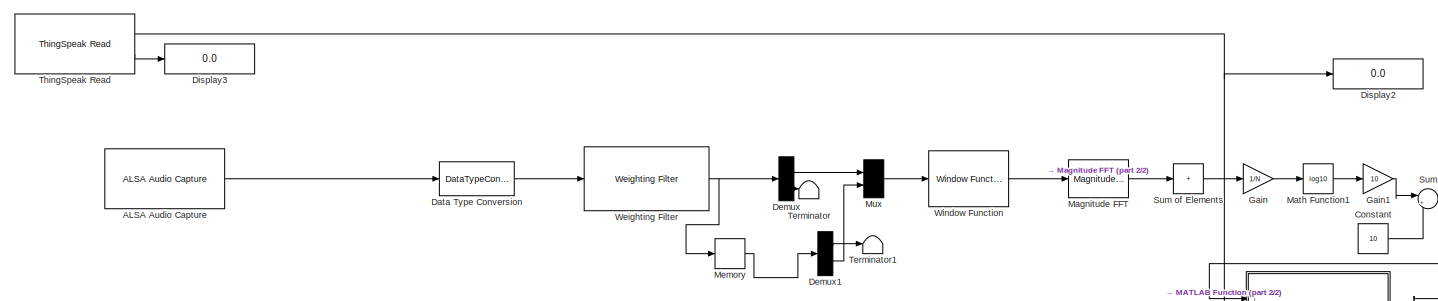
[diagram: root canvas - part 1/2, full width, middle band]
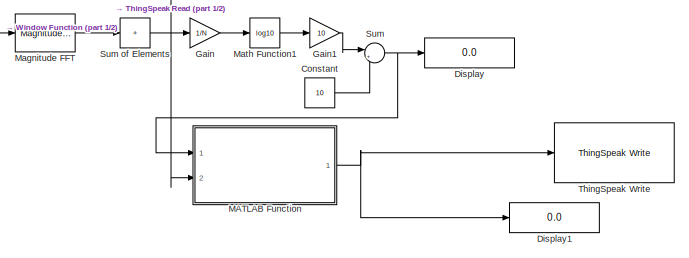
[diagram: root canvas - part 2/2, bottom right region]
MODEL slx_68cf78d1bf01
KIND model
CONFIG AbsTol = auto
CONFIG EnableMultiTasking = on
CONFIG FixedStep = auto
CONFIG MaxStep = auto
CONFIG MinStep = auto
CONFIG RelTol = 1e-3
CONFIG SampleTimeConstraint = Unconstrained
CONFIG SolverName = FixedStepAuto
CONFIG StartTime = 0.0
CONFIG StopTime = inf
WORKSPACE source: mxarray member
WORKSPACE Fs: Simulink.Parameter (value not decoded)
WORKSPACE N: Simulink.Parameter (value not decoded)
WORKSPACE x: Simulink.Parameter (value not decoded)
BLOCK [Reference] ALSA Audio Capture  REF=embdlinuxlib/ALSA Audio Capture
  Ports = [0, 1]
  SourceBlock = embdlinuxlib/ALSA Audio Capture
  SourceProductBaseCode = SC_BEAGLEBONE_BLUE,NVIDIA,RASPPI
  SourceType = ALSA Audio Capture
BLOCK [Constant] Constant
  Value = 10
BLOCK [DataTypeConversion] Data Type Conversion
  OutDataTypeStr = double
  RndMeth = Nearest
BLOCK [Demux] Demux
  Outputs = x
  Ports = [1, 2]
BLOCK [Demux] Demux1
  Outputs = x
  Ports = [1, 2]
BLOCK [Display] Display
  Decimation = 1
  Ports = [1]
BLOCK [Display] Display1
  Decimation = 1
  Ports = [1]
BLOCK [Display] Display2
  Decimation = 1
  Ports = [1]
BLOCK [Display] Display3
  Decimation = 1
  Ports = [1]
BLOCK [Gain] Gain
  Gain = 1/N
BLOCK [Gain] Gain1
  Gain = 10
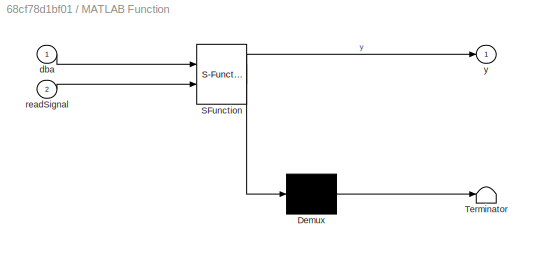
BLOCK [SubSystem] MATLAB Function
  ErrorFcn = Stateflow.Translate.translate
  PermitHierarchicalResolution = ExplicitOnly
  Ports = [2, 1]
  RequestExecContextInheritance = off
  SFBlockType = MATLAB Function
  TreatAsAtomicUnit = on
BLOCK [Demux] MATLAB Function/ Demux 
  Outputs = 1
  Ports = [1, 1]
BLOCK [S-Function] MATLAB Function/ SFunction 
  EnableBusSupport = on
  FunctionName = sf_sfun
  PortCounts = [2 2]
  Ports = [2, 2]
  SFcnIsStateOwnerBlock = off
  SFunctionDeploymentMode = off
  Tag = Stateflow S-Function 2
BLOCK [Terminator] MATLAB Function/ Terminator 
BLOCK [Inport] MATLAB Function/dba
BLOCK [Inport] MATLAB Function/readSignal
  Port = 2
BLOCK [Outport] MATLAB Function/y
BLOCK [Reference] Magnitude FFT  REF=dspspect3/Magnitude
FFT
  Ports = [1, 1]
  SourceBlock = dspspect3/Magnitude\nFFT
  SourceProductName = DSP System Toolbox
  SourceType = Magnitude FFT
BLOCK [Math] Math Function1
  Operator = log10
  Ports = [1, 1]
BLOCK [Memory] Memory
BLOCK [Mux] Mux
  DisplayOption = bar
  Inputs = 2
  Ports = [2, 1]
BLOCK [Sum] Sum
  Inputs = |++
  Ports = [2, 1]
BLOCK [Sum] Sum of Elements
  IconShape = rectangular
  Inputs = +
  Ports = [1, 1]
BLOCK [Terminator] Terminator
BLOCK [Terminator] Terminator1
BLOCK [Reference] ThingSpeak Read  REF=raspberrypiIOTlib/ThingSpeak Read
  Ports = [0, 2]
  SourceBlock = raspberrypiIOTlib/ThingSpeak Read
  SourceProductBaseCode = RASPPI
  SourceType = codertarget.linux.blocks.ThingSpeakRead
BLOCK [Reference] ThingSpeak Write  REF=raspberrypiIOTlib/ThingSpeak Write
  Ports = [1]
  SourceBlock = raspberrypiIOTlib/ThingSpeak Write
  SourceProductBaseCode = RASPPI
  SourceType = codertarget.linux.blocks.ThingSpeakWrite
BLOCK [Reference] Weighting Filter  REF=audiofilters/Weighting Filter
  Ports = [1, 1]
  SourceBlock = audiofilters/Weighting Filter
  SourceProductBaseCode = AU
  SourceType = weightingFilter
BLOCK [Reference] Window Function  REF=dspsigops/Window
Function
  Ports = [1, 1]
  SourceBlock = dspsigops/Window\nFunction
  SourceProductBaseCode = DS
  SourceType = Window Function
LINE ALSA Audio Capture:1 -> Data Type Conversion:1
LINE Constant:1 -> Sum:2
LINE Data Type Conversion:1 -> Weighting Filter:1
LINE Demux1:1 -> Terminator1:1
LINE Demux1:2 -> Mux:2
LINE Demux:1 -> Mux:1
LINE Demux:2 -> Terminator:1
LINE Gain1:1 -> Sum:1
LINE Gain:1 -> Math Function1:1
NET MATLAB Function:1 -> Display1:1, ThingSpeak Write:1
LINE Magnitude FFT:1 -> Sum of Elements:1
LINE Math Function1:1 -> Gain1:1
LINE Memory:1 -> Demux1:1
LINE Mux:1 -> Window Function:1
LINE Sum of Elements:1 -> Gain:1
NET Sum:1 -> Display:1, MATLAB Function:1
NET ThingSpeak Read:1 -> Display2:1, MATLAB Function:2
LINE ThingSpeak Read:2 -> Display3:1
NET Weighting Filter:1 -> Demux:1, Memory:1
LINE Window Function:1 -> Magnitude FFT:1
note: NET lines group one-source signal fan-out (src -> all destinations, sorted); 1:1 wires keep LINE
CHART MATLAB Function states=1 transitions=1
  STATE_LABEL 'eML_blk_kernel()'
  STATE_LABEL 'SCRIPT:\nfunction y = fcn(dba, readSignal)\n    if (readSignal >= 70)\n        y = dba;\n    else\n        y = NaN;\n    end\nend'
CHART  states=0 transitions=0
